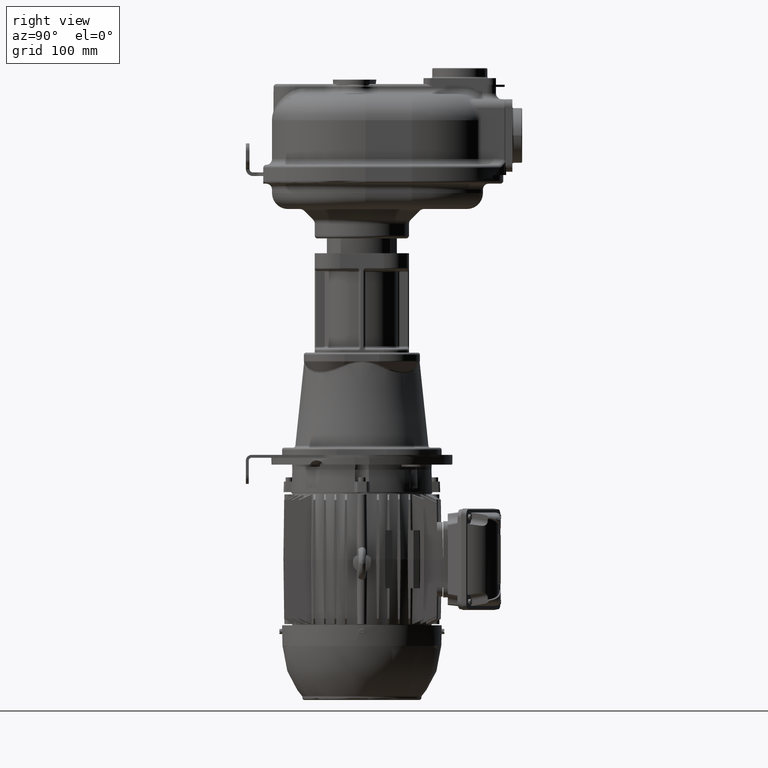
[diagram: clean part render]
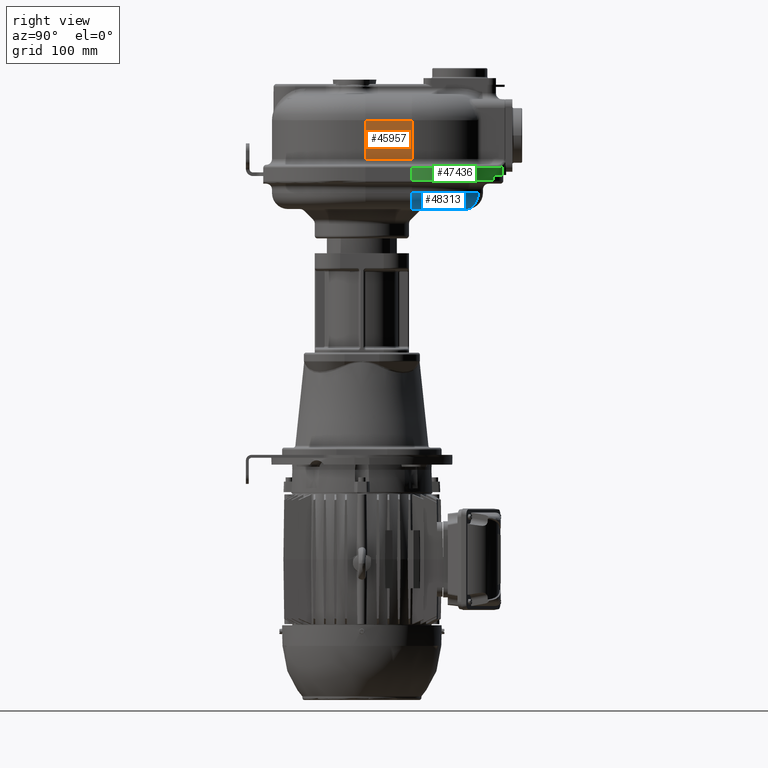
[diagram: same view with three faces highlighted in distinct colors, each labeled with its STEP entity id]
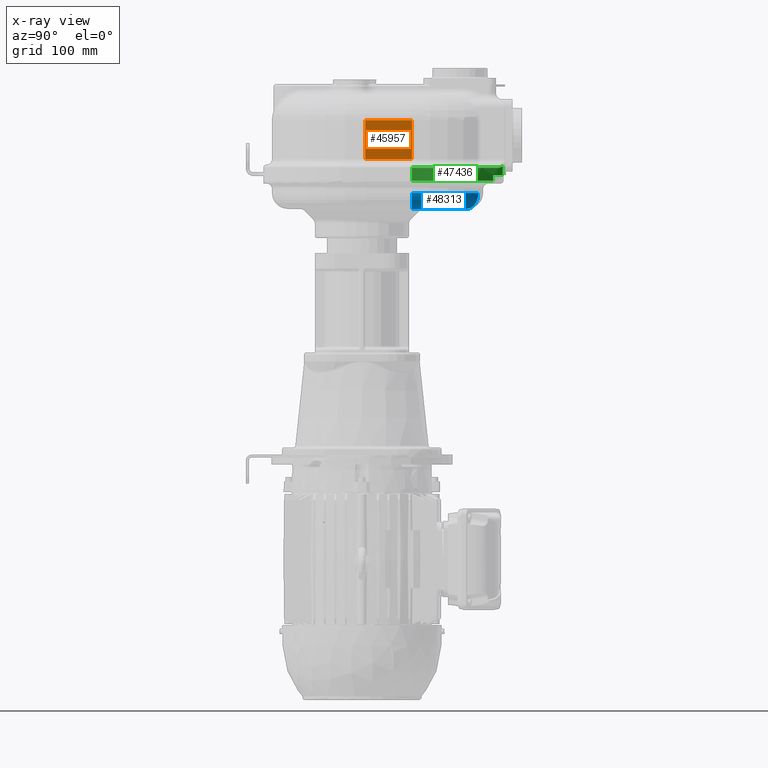
[diagram: x-ray of the same camera — body ghosted, the three highlighted faces saturated]
A machine part, right view with three faces highlighted in distinct colors.
The next image is the same camera in x-ray (body ghosted, the three faces saturated) — at least one of them is partly hidden behind the body in this view.
Their STEP definitions:

[orange] entity #45957 — the highlighted planar face has unit normal (1, 0, 0).
#625=DIRECTION('',(0.E0,0.E0,-1.E0));
#626=VECTOR('',#625,5.35E1);
#627=CARTESIAN_POINT('',(1.34E2,1.65E2,4.8E1));
#628=LINE('',#627,#626);
#639=DIRECTION('',(0.E0,0.E0,-1.E0));
#640=VECTOR('',#639,5.35E1);
#641=CARTESIAN_POINT('',(1.34E2,2.29E2,4.8E1));
#642=LINE('',#641,#640);
#643=DIRECTION('',(0.E0,1.E0,0.E0));
#644=VECTOR('',#643,6.4E1);
#645=CARTESIAN_POINT('',(1.34E2,1.65E2,-5.5E0));
#646=LINE('',#645,#644);
#647=DIRECTION('',(0.E0,1.E0,0.E0));
#648=VECTOR('',#647,6.4E1);
#649=CARTESIAN_POINT('',(1.34E2,1.65E2,4.8E1));
#650=LINE('',#649,#648);
#37084=CARTESIAN_POINT('',(1.34E2,1.65E2,4.8E1));
#37085=CARTESIAN_POINT('',(1.34E2,2.29E2,4.8E1));
#37086=VERTEX_POINT('',#37084);
#37087=VERTEX_POINT('',#37085);
#37239=CARTESIAN_POINT('',(1.34E2,2.29E2,-5.5E0));
#37240=VERTEX_POINT('',#37239);
#37241=CARTESIAN_POINT('',(1.34E2,1.65E2,-5.5E0));
#37242=VERTEX_POINT('',#37241);
#45943=CARTESIAN_POINT('',(1.34E2,2.29E2,-2.35E1));
#45944=DIRECTION('',(1.E0,0.E0,0.E0));
#45945=DIRECTION('',(0.E0,-1.E0,0.E0));
#45946=AXIS2_PLACEMENT_3D('',#45943,#45944,#45945);
#45947=PLANE('',#45946);
#45949=ORIENTED_EDGE('',*,*,#45948,.T.);
#45951=ORIENTED_EDGE('',*,*,#45950,.F.);
#45952=ORIENTED_EDGE('',*,*,#45935,.F.);
#45954=ORIENTED_EDGE('',*,*,#45953,.T.);
#45955=EDGE_LOOP('',(#45949,#45951,#45952,#45954));
#45956=FACE_OUTER_BOUND('',#45955,.F.);
#45957=ADVANCED_FACE('',(#45956),#45947,.T.);
#45935=EDGE_CURVE('',#37086,#37242,#628,.T.);
#45948=EDGE_CURVE('',#37087,#37240,#642,.T.);
#45950=EDGE_CURVE('',#37242,#37240,#646,.T.);
#45953=EDGE_CURVE('',#37086,#37087,#650,.T.);

[blue] entity #48313 — the highlighted toroidal blend (fillet) surface has major radius 102 mm and minor (blend) radius 22 mm.
#2535=CARTESIAN_POINT('',(1.E1,2.29E2,-5.25E1));
#2536=DIRECTION('',(0.E0,0.E0,-1.E0));
#2537=DIRECTION('',(6.754849897899E-1,7.373737373737E-1,0.E0));
#2538=AXIS2_PLACEMENT_3D('',#2535,#2536,#2537);
#2724=CARTESIAN_POINT('',(1.E1,2.29E2,-7.45E1));
#2725=DIRECTION('',(0.E0,0.E0,-1.E0));
#2726=DIRECTION('',(6.754849897899E-1,7.373737373737E-1,0.E0));
#2727=AXIS2_PLACEMENT_3D('',#2724,#2725,#2726);
#2884=CARTESIAN_POINT('',(7.889946895857E1,3.042121212121E2,-5.25E1));
#2885=DIRECTION('',(7.373737373737E-1,-6.754849897899E-1,0.E0));
#2886=DIRECTION('',(0.E0,0.E0,-1.E0));
#2887=AXIS2_PLACEMENT_3D('',#2884,#2885,#2886);
#2889=CARTESIAN_POINT('',(1.12E2,2.29E2,-5.25E1));
#2890=DIRECTION('',(0.E0,-1.E0,0.E0));
#2891=DIRECTION('',(0.E0,0.E0,-1.E0));
#2892=AXIS2_PLACEMENT_3D('',#2889,#2890,#2891);
#37474=CARTESIAN_POINT('',(7.889946895857E1,3.042121212121E2,-7.45E1));
#37475=VERTEX_POINT('',#37474);
#37476=CARTESIAN_POINT('',(9.376013873395E1,3.204343434343E2,-5.25E1));
#37477=VERTEX_POINT('',#37476);
#37478=CARTESIAN_POINT('',(1.12E2,2.29E2,-7.45E1));
#37479=VERTEX_POINT('',#37478);
#37480=CARTESIAN_POINT('',(1.34E2,2.29E2,-5.25E1));
#37481=VERTEX_POINT('',#37480);
#48301=CARTESIAN_POINT('',(1.E1,2.29E2,-5.25E1));
#48302=DIRECTION('',(0.E0,0.E0,-1.E0));
#48303=DIRECTION('',(6.753935454958E-1,7.374574962007E-1,0.E0));
#48304=AXIS2_PLACEMENT_3D('',#48301,#48302,#48303);
#48305=TOROIDAL_SURFACE('',#48304,1.02E2,2.2E1);
#48306=ORIENTED_EDGE('',*,*,#47970,.T.);
#48308=ORIENTED_EDGE('',*,*,#48307,.T.);
#48309=ORIENTED_EDGE('',*,*,#47711,.F.);
#48310=ORIENTED_EDGE('',*,*,#48294,.F.);
#48311=EDGE_LOOP('',(#48306,#48308,#48309,#48310));
#48312=FACE_OUTER_BOUND('',#48311,.F.);
#48313=ADVANCED_FACE('',(#48312),#48305,.T.);
#2539=CIRCLE('',#2538,1.24E2);
#2728=CIRCLE('',#2727,1.02E2);
#2888=CIRCLE('',#2887,2.2E1);
#2893=CIRCLE('',#2892,2.2E1);
#47711=EDGE_CURVE('',#37477,#37481,#2539,.T.);
#47970=EDGE_CURVE('',#37475,#37479,#2728,.T.);
#48294=EDGE_CURVE('',#37475,#37477,#2888,.T.);
#48307=EDGE_CURVE('',#37479,#37481,#2893,.T.);

[green] entity #47436 — the highlighted cylindrical surface (partial cylindrical patch) has radius 152 mm, axis along (0, 0, -1).
#2018=CARTESIAN_POINT('',(9.626958107433E1,3.541461520833E2,-1.524631236524E1));
#2056=CARTESIAN_POINT('',(1.E1,2.29E2,-2.75E1));
#2057=DIRECTION('',(0.E0,0.E0,-1.E0));
#2058=DIRECTION('',(5.675630333838E-1,8.233299479165E-1,0.E0));
#2059=AXIS2_PLACEMENT_3D('',#2056,#2057,#2058);
#2280=DIRECTION('',(0.E0,0.E0,-1.E0));
#2281=VECTOR('',#2280,1.8E1);
#2282=CARTESIAN_POINT('',(1.62E2,2.29E2,-1.75E1));
#2283=LINE('',#2282,#2281);
#2292=DIRECTION('',(0.E0,0.E0,-1.E0));
#2293=VECTOR('',#2292,8.E0);
#2294=CARTESIAN_POINT('',(1.126737184481E2,3.410808080808E2,-2.75E1));
#2295=LINE('',#2294,#2293);
#2296=CARTESIAN_POINT('',(1.E1,2.29E2,-3.55E1));
#2297=DIRECTION('',(0.E0,0.E0,-1.E0));
#2298=DIRECTION('',(6.754849897899E-1,7.373737373737E-1,0.E0));
#2299=AXIS2_PLACEMENT_3D('',#2296,#2297,#2298);
#2301=CARTESIAN_POINT('',(1.E1,2.29E2,-1.75E1));
#2302=DIRECTION('',(0.E0,0.E0,1.E0));
#2303=DIRECTION('',(1.E0,0.E0,0.E0));
#2304=AXIS2_PLACEMENT_3D('',#2301,#2302,#2303);
#2306=CARTESIAN_POINT('',(1.034594594595E2,3.488721378701E2,-1.75E1));
#2307=CARTESIAN_POINT('',(1.032795796951E2,3.490123828381E2,-1.749999995520E1));
#2308=CARTESIAN_POINT('',(1.029211205563E2,3.492905578533E2,-1.749233968162E1));
#2309=CARTESIAN_POINT('',(1.023868749173E2,3.497013460475E2,-1.745823586831E1));
#2310=CARTESIAN_POINT('',(1.018577229836E2,3.501045172388E2,-1.740196043520E1));
#2311=CARTESIAN_POINT('',(1.013348916827E2,3.504992931177E2,-1.732406253917E1));
#2312=CARTESIAN_POINT('',(1.008195366841E2,3.508849754526E2,-1.722515799444E1));
#2313=CARTESIAN_POINT('',(1.003127250279E2,3.512609570829E2,-1.710592948671E1));
#2314=CARTESIAN_POINT('',(9.981542882262E1,3.516267214782E2,-1.696711041721E1));
#2315=CARTESIAN_POINT('',(9.932852707056E1,3.519818370853E2,-1.680947443834E1));
#2316=CARTESIAN_POINT('',(9.885280909494E1,3.523259506189E2,-1.663382539430E1));
#2317=CARTESIAN_POINT('',(9.838897598133E1,3.526587821302E2,-1.644098720023E1));
#2318=CARTESIAN_POINT('',(9.793764793830E1,3.529801162511E2,-1.623179766223E1));
#2319=CARTESIAN_POINT('',(9.749935470391E1,3.532898055408E2,-1.600709199430E1));
#2320=CARTESIAN_POINT('',(9.707459393587E1,3.535877270609E2,-1.576773079944E1));
#2321=CARTESIAN_POINT('',(9.666366084242E1,3.538738978532E2,-1.551447973693E1));
#2322=CARTESIAN_POINT('',(9.639937563184E1,3.540566781135E2,-1.533708893445E1));
#2323=CARTESIAN_POINT('',(9.626958107433E1,3.541461520833E2,-1.524631236524E1));
#2325=DIRECTION('',(0.E0,0.E0,-1.E0));
#2326=VECTOR('',#2325,1.225368763476E1);
#2327=CARTESIAN_POINT('',(9.626958107433E1,3.541461520833E2,-1.524631236524E1));
#2328=LINE('',#2327,#2326);
#37267=VERTEX_POINT('',#2018);
#37272=VERTEX_POINT('',#2306);
#37275=CARTESIAN_POINT('',(1.62E2,2.29E2,-1.75E1));
#37276=VERTEX_POINT('',#37275);
#37303=CARTESIAN_POINT('',(9.626958107433E1,3.541461520833E2,-2.75E1));
#37304=VERTEX_POINT('',#37303);
#37558=CARTESIAN_POINT('',(1.62E2,2.29E2,-3.55E1));
#37559=VERTEX_POINT('',#37558);
#37562=CARTESIAN_POINT('',(1.126737184481E2,3.410808080808E2,-3.55E1));
#37563=VERTEX_POINT('',#37562);
#37584=CARTESIAN_POINT('',(1.126737184481E2,3.410808080808E2,-2.75E1));
#37585=VERTEX_POINT('',#37584);
#47418=CARTESIAN_POINT('',(1.E1,2.29E2,-2.75E1));
#47419=DIRECTION('',(0.E0,0.E0,-1.E0));
#47420=DIRECTION('',(-1.E0,0.E0,0.E0));
#47421=AXIS2_PLACEMENT_3D('',#47418,#47419,#47420);
#47422=CYLINDRICAL_SURFACE('',#47421,1.52E2);
#47423=ORIENTED_EDGE('',*,*,#47243,.T.);
#47425=ORIENTED_EDGE('',*,*,#47424,.T.);
#47427=ORIENTED_EDGE('',*,*,#47426,.T.);
#47428=ORIENTED_EDGE('',*,*,#47408,.F.);
#47430=ORIENTED_EDGE('',*,*,#47429,.T.);
#47432=ORIENTED_EDGE('',*,*,#47431,.T.);
#47433=ORIENTED_EDGE('',*,*,#47227,.T.);
#47434=EDGE_LOOP('',(#47423,#47425,#47427,#47428,#47430,#47432,#47433));
#47435=FACE_OUTER_BOUND('',#47434,.F.);
#47436=ADVANCED_FACE('',(#47435),#47422,.T.);
#2060=CIRCLE('',#2059,1.52E2);
#2300=CIRCLE('',#2299,1.52E2);
#2305=CIRCLE('',#2304,1.52E2);
#2324=B_SPLINE_CURVE_WITH_KNOTS('',3,(#2306,#2307,#2308,#2309,#2310,#2311,#2312,
#2313,#2314,#2315,#2316,#2317,#2318,#2319,#2320,#2321,#2322,#2323),
.UNSPECIFIED.,.F.,.F.,(4,1,1,1,1,1,1,1,1,1,1,1,1,1,1,4),(0.E0,6.666666666667E-2,
1.333333333333E-1,2.E-1,2.666666666667E-1,3.333333333333E-1,4.E-1,
4.666666666667E-1,5.333333333333E-1,6.E-1,6.666666666667E-1,7.333333333333E-1,
8.E-1,8.666666666667E-1,9.333333333333E-1,1.E0),.UNSPECIFIED.);
#47227=EDGE_CURVE('',#37267,#37304,#2328,.T.);
#47243=EDGE_CURVE('',#37304,#37585,#2060,.T.);
#47408=EDGE_CURVE('',#37276,#37559,#2283,.T.);
#47424=EDGE_CURVE('',#37585,#37563,#2295,.T.);
#47426=EDGE_CURVE('',#37563,#37559,#2300,.T.);
#47429=EDGE_CURVE('',#37276,#37272,#2305,.T.);
#47431=EDGE_CURVE('',#37272,#37267,#2324,.T.);